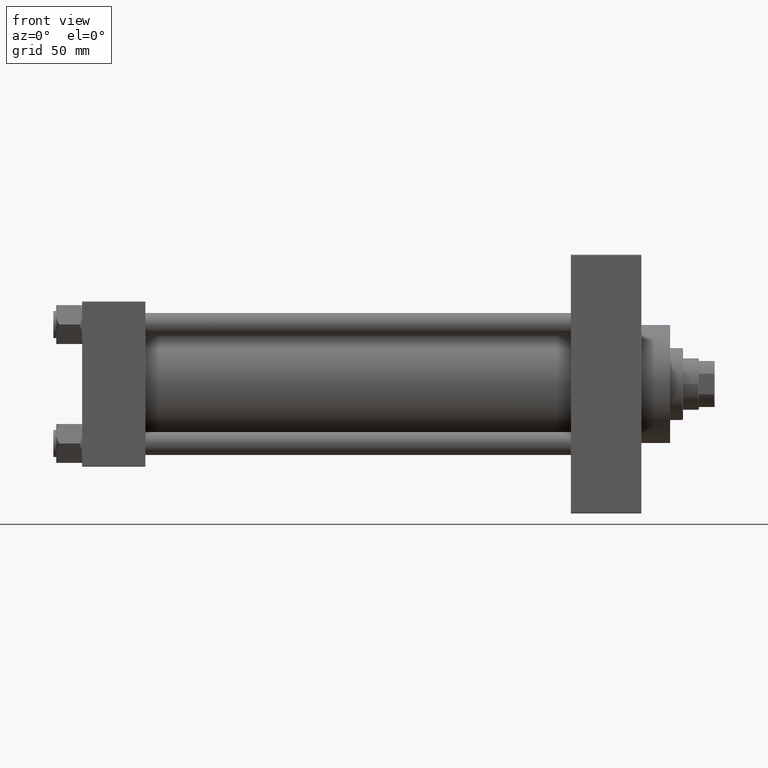
[diagram: clean part render]
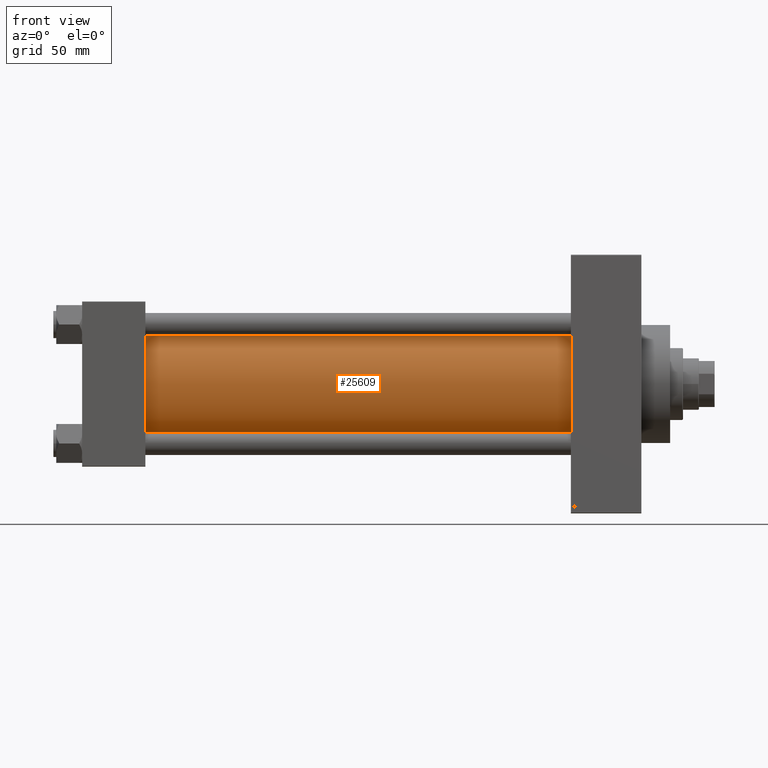
[diagram: same view with one face highlighted and labeled with its STEP entity id]
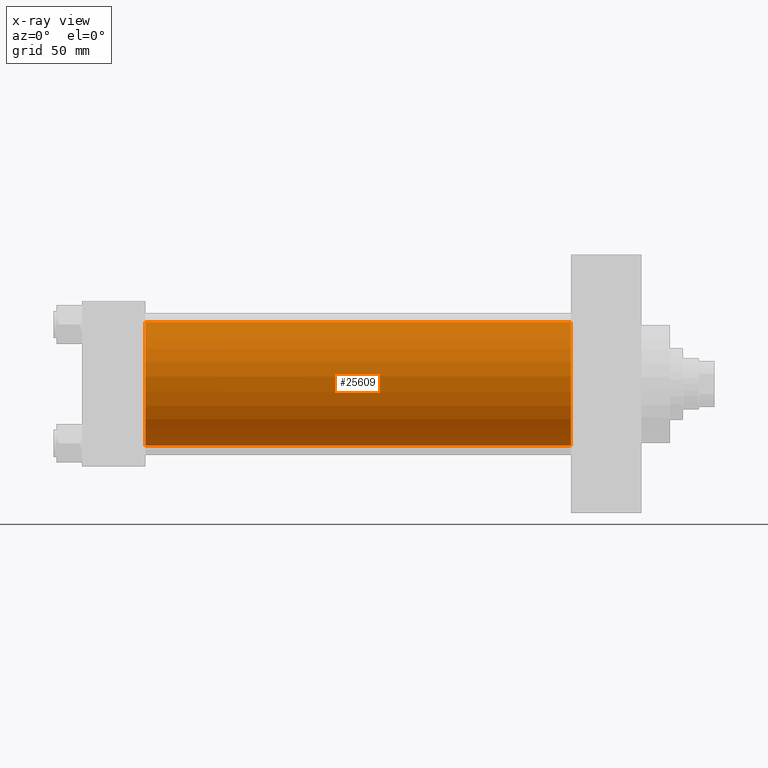
[diagram: x-ray of the same camera — body ghosted, the highlighted face saturated]
A machine part, front view. The second image highlights one B-rep face of the part: STEP entity #25609.
The next image is the same camera in x-ray: the body ghosted, the highlighted face saturated — about 0% of this face is hidden behind the body in this view.
In plain terms, the highlighted cylindrical surface (partial cylindrical patch) has radius 43 mm, axis along (-1, -0, -0).
Its self-contained STEP definition (entity closure, byte-faithful):
#1974 = EDGE_CURVE ( 'NONE', #4728, #11962, #9548, .T. ) ;
#2248 = AXIS2_PLACEMENT_3D ( 'NONE', #34813, #24191, #12304 ) ;
#4728 = VERTEX_POINT ( 'NONE', #27236 ) ;
#5323 = CIRCLE ( 'NONE', #14196, 43.00000000000000000 ) ;
#5487 = ORIENTED_EDGE ( 'NONE', *, *, #28256, .F. ) ;
#9548 = CIRCLE ( 'NONE', #2248, 43.00000000000000000 ) ;
#11589 = DIRECTION ( 'NONE',  ( -1.000000000000000000, -0.000000000000000000, -0.000000000000000000 ) ) ;
#11962 = VERTEX_POINT ( 'NONE', #22264 ) ;
#12304 = DIRECTION ( 'NONE',  ( 0.000000000000000000, 0.000000000000000000, 1.000000000000000000 ) ) ;
#13121 = VECTOR ( 'NONE', #11589, 1000.000000000000000 ) ;
#13641 = CARTESIAN_POINT ( 'NONE',  ( 339.9999999999999432, -2.602085213965210642E-15, 0.000000000000000000 ) ) ;
#13883 = ORIENTED_EDGE ( 'NONE', *, *, #17269, .T. ) ;
#14163 = AXIS2_PLACEMENT_3D ( 'NONE', #13641, #26759, #18916 ) ;
#14196 = AXIS2_PLACEMENT_3D ( 'NONE', #14574, #41870, #33801 ) ;
#14527 = ORIENTED_EDGE ( 'NONE', *, *, #1974, .T. ) ;
#14574 = CARTESIAN_POINT ( 'NONE',  ( 339.9999999999999432, -2.602085213965210642E-15, 0.000000000000000000 ) ) ;
#15745 = VERTEX_POINT ( 'NONE', #43927 ) ;
#17269 = EDGE_CURVE ( 'NONE', #32464, #4728, #50028, .T. ) ;
#18916 = DIRECTION ( 'NONE',  ( 0.000000000000000000, 0.000000000000000000, 1.000000000000000000 ) ) ;
#21312 = LINE ( 'NONE', #47633, #41693 ) ;
#22264 = CARTESIAN_POINT ( 'NONE',  ( 43.99999999999998579, 2.663896022368408223E-15, -43.00000000000000000 ) ) ;
#24191 = DIRECTION ( 'NONE',  ( 1.000000000000000000, -0.000000000000000000, 0.000000000000000000 ) ) ;
#25609 = ADVANCED_FACE ( 'NONE', ( #32856 ), #48300, .T. ) ;
#26036 = EDGE_CURVE ( 'NONE', #32464, #15745, #5323, .T. ) ;
#26759 = DIRECTION ( 'NONE',  ( -1.000000000000000000, -0.000000000000000000, -0.000000000000000000 ) ) ;
#27001 = CARTESIAN_POINT ( 'NONE',  ( 339.9999999999999432, -2.602085213965210642E-15, 43.00000000000000000 ) ) ;
#27236 = CARTESIAN_POINT ( 'NONE',  ( 43.99999999999998579, -2.602085213965210642E-15, 43.00000000000000000 ) ) ;
#28256 = EDGE_CURVE ( 'NONE', #15745, #11962, #21312, .T. ) ;
#32464 = VERTEX_POINT ( 'NONE', #40313 ) ;
#32856 = FACE_OUTER_BOUND ( 'NONE', #33002, .T. ) ;
#32865 = ORIENTED_EDGE ( 'NONE', *, *, #26036, .F. ) ;
#33002 = EDGE_LOOP ( 'NONE', ( #5487, #32865, #13883, #14527 ) ) ;
#33801 = DIRECTION ( 'NONE',  ( 0.000000000000000000, 0.000000000000000000, -1.000000000000000000 ) ) ;
#34813 = CARTESIAN_POINT ( 'NONE',  ( 43.99999999999998579, -2.602085213965210642E-15, 0.000000000000000000 ) ) ;
#40313 = CARTESIAN_POINT ( 'NONE',  ( 339.9999999999999432, -2.602085213965210642E-15, 43.00000000000000000 ) ) ;
#41693 = VECTOR ( 'NONE', #47874, 1000.000000000000000 ) ;
#41870 = DIRECTION ( 'NONE',  ( 1.000000000000000000, 0.000000000000000000, 0.000000000000000000 ) ) ;
#43927 = CARTESIAN_POINT ( 'NONE',  ( 339.9999999999999432, 2.663896022368408223E-15, -43.00000000000000000 ) ) ;
#47633 = CARTESIAN_POINT ( 'NONE',  ( 339.9999999999999432, 2.663896022368408223E-15, -43.00000000000000000 ) ) ;
#47874 = DIRECTION ( 'NONE',  ( -1.000000000000000000, -0.000000000000000000, -0.000000000000000000 ) ) ;
#48300 = CYLINDRICAL_SURFACE ( 'NONE', #14163, 43.00000000000000000 ) ;
#50028 = LINE ( 'NONE', #27001, #13121 ) ;